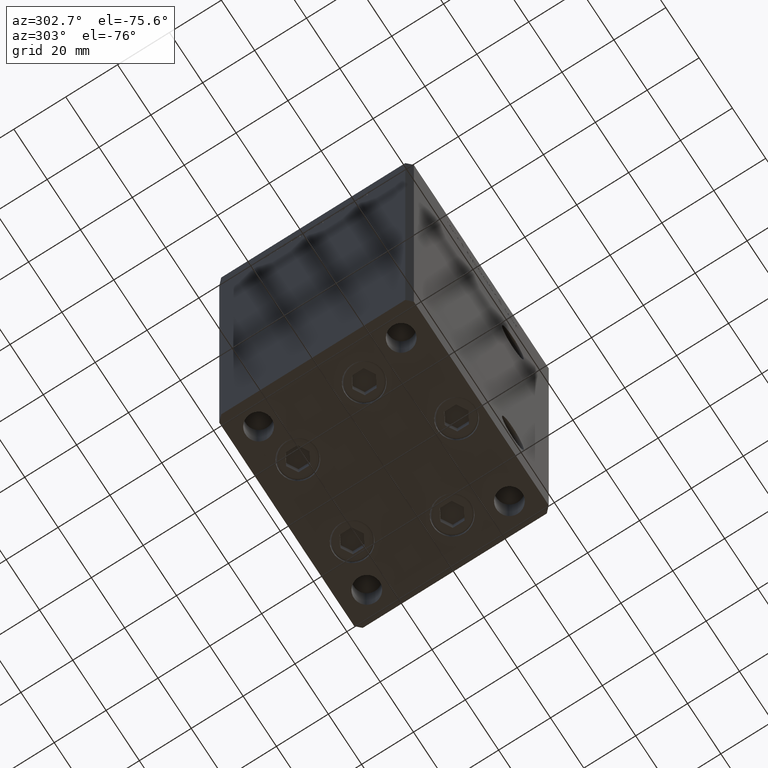
[diagram: clean part render]
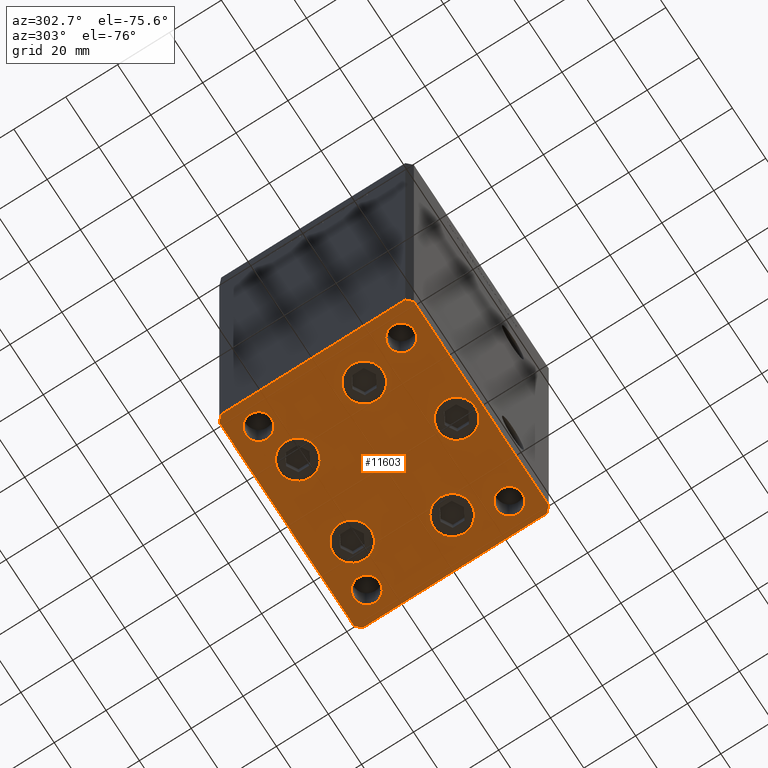
[diagram: same view with one face highlighted and labeled with its STEP entity id]
A machine part, auxiliary view. The second image highlights one B-rep face of the part: STEP entity #11603.
In plain terms, the highlighted planar face has unit normal (0, 0, -1).
Its self-contained STEP definition (entity closure, byte-faithful):
#543 = FACE_BOUND ( 'NONE', #9549, .T. ) ;
#760 = EDGE_CURVE ( 'NONE', #25622, #38683, #28828, .T. ) ;
#795 = DIRECTION ( 'NONE',  ( 1.000000000000000000, 0.000000000000000000, 0.000000000000000000 ) ) ;
#801 = CARTESIAN_POINT ( 'NONE',  ( 42.50000000000000711, -35.50000000000000000, 0.000000000000000000 ) ) ;
#1008 = EDGE_CURVE ( 'NONE', #23817, #39590, #50958, .T. ) ;
#1014 = DIRECTION ( 'NONE',  ( 0.000000000000000000, -0.000000000000000000, -1.000000000000000000 ) ) ;
#1179 = CIRCLE ( 'NONE', #9653, 5.000000000000000888 ) ;
#1211 = CIRCLE ( 'NONE', #35067, 4.999999999999997335 ) ;
#1285 = AXIS2_PLACEMENT_3D ( 'NONE', #44567, #28640, #29158 ) ;
#1493 = EDGE_CURVE ( 'NONE', #38683, #25622, #32203, .T. ) ;
#1774 = CARTESIAN_POINT ( 'NONE',  ( -7.249999999999997335, -28.00000000000000000, 0.000000000000000000 ) ) ;
#1990 = CARTESIAN_POINT ( 'NONE',  ( -32.50000000000000000, -27.49999999999999645, 0.000000000000000000 ) ) ;
#2287 = CARTESIAN_POINT ( 'NONE',  ( -19.14865316429777309, -9.333333333333335702, 0.000000000000000000 ) ) ;
#2519 = CARTESIAN_POINT ( 'NONE',  ( -40.50000000000000711, 37.49999999999997868, 0.000000000000000000 ) ) ;
#2762 = CIRCLE ( 'NONE', #25594, 4.999999999999997335 ) ;
#3625 = LINE ( 'NONE', #8396, #18151 ) ;
#4021 = CARTESIAN_POINT ( 'NONE',  ( 7.250000000000003553, -28.00000000000000000, 0.000000000000000000 ) ) ;
#4061 = DIRECTION ( 'NONE',  ( 0.000000000000000000, -0.000000000000000000, -1.000000000000000000 ) ) ;
#4144 = DIRECTION ( 'NONE',  ( 1.000000000000000000, 0.000000000000000000, 0.000000000000000000 ) ) ;
#4283 = VECTOR ( 'NONE', #14914, 1000.000000000000000 ) ;
#4428 = AXIS2_PLACEMENT_3D ( 'NONE', #1990, #33542, #4929 ) ;
#4547 = DIRECTION ( 'NONE',  ( 1.000000000000000000, 1.713307136767217096E-16, 0.000000000000000000 ) ) ;
#4687 = AXIS2_PLACEMENT_3D ( 'NONE', #41291, #1014, #37321 ) ;
#4718 = CARTESIAN_POINT ( 'NONE',  ( -16.32291334290543006, 22.74999999999999645, 0.000000000000000000 ) ) ;
#4752 = CARTESIAN_POINT ( 'NONE',  ( 27.50000000000000355, -27.49999999999999645, 0.000000000000000000 ) ) ;
#4903 = VERTEX_POINT ( 'NONE', #26346 ) ;
#4929 = DIRECTION ( 'NONE',  ( 1.000000000000000000, 0.000000000000000000, 0.000000000000000000 ) ) ;
#4975 = DIRECTION ( 'NONE',  ( 0.000000000000000000, -0.000000000000000000, -1.000000000000000000 ) ) ;
#5123 = DIRECTION ( 'NONE',  ( -1.172770800660376741E-15, 1.000000000000000000, 0.000000000000000000 ) ) ;
#5286 = ORIENTED_EDGE ( 'NONE', *, *, #13236, .T. ) ;
#5561 = FACE_BOUND ( 'NONE', #21201, .T. ) ;
#5598 = VERTEX_POINT ( 'NONE', #29549 ) ;
#6226 = ORIENTED_EDGE ( 'NONE', *, *, #1008, .T. ) ;
#6371 = ORIENTED_EDGE ( 'NONE', *, *, #12217, .F. ) ;
#6473 = EDGE_CURVE ( 'NONE', #37064, #14629, #34036, .T. ) ;
#7269 = VERTEX_POINT ( 'NONE', #29965 ) ;
#7341 = CIRCLE ( 'NONE', #33543, 4.999999999999997335 ) ;
#8285 = CIRCLE ( 'NONE', #25203, 7.249999999999999112 ) ;
#8291 = DIRECTION ( 'NONE',  ( 0.000000000000000000, -0.000000000000000000, -1.000000000000000000 ) ) ;
#8323 = CARTESIAN_POINT ( 'NONE',  ( 33.64865316429776954, -9.333333333333328596, 0.000000000000000000 ) ) ;
#8349 = VECTOR ( 'NONE', #4547, 1000.000000000000000 ) ;
#8396 = CARTESIAN_POINT ( 'NONE',  ( 40.50000000000000000, -37.50000000000000711, 0.000000000000000000 ) ) ;
#8833 = VERTEX_POINT ( 'NONE', #49628 ) ;
#9019 = EDGE_LOOP ( 'NONE', ( #24409, #15539 ) ) ;
#9188 = DIRECTION ( 'NONE',  ( -0.000000000000000000, 0.000000000000000000, 1.000000000000000000 ) ) ;
#9549 = EDGE_LOOP ( 'NONE', ( #13518, #49304 ) ) ;
#9553 = VERTEX_POINT ( 'NONE', #14755 ) ;
#9653 = AXIS2_PLACEMENT_3D ( 'NONE', #9903, #30811, #47001 ) ;
#9724 = CIRCLE ( 'NONE', #39348, 7.249999999999999112 ) ;
#9903 = CARTESIAN_POINT ( 'NONE',  ( -32.50000000000000000, 27.50000000000000355, 0.000000000000000000 ) ) ;
#9945 = ORIENTED_EDGE ( 'NONE', *, *, #37286, .T. ) ;
#10720 = CIRCLE ( 'NONE', #16634, 5.000000000000000888 ) ;
#10741 = DIRECTION ( 'NONE',  ( 1.000000000000000000, 0.000000000000000000, 0.000000000000000000 ) ) ;
#11205 = DIRECTION ( 'NONE',  ( 1.000000000000000000, 0.000000000000000000, 0.000000000000000000 ) ) ;
#11473 = CARTESIAN_POINT ( 'NONE',  ( 16.32291334290542295, 22.75000000000000000, 0.000000000000000000 ) ) ;
#11513 = DIRECTION ( 'NONE',  ( 1.000000000000000000, 0.000000000000000000, 0.000000000000000000 ) ) ;
#11603 = ADVANCED_FACE ( 'NONE', ( #21185, #21448, #44795, #25680, #5561, #13506, #16957, #45044, #37625, #543 ), #12479, .T. ) ;
#12039 = ORIENTED_EDGE ( 'NONE', *, *, #28593, .T. ) ;
#12199 = AXIS2_PLACEMENT_3D ( 'NONE', #19784, #31716, #4144 ) ;
#12217 = EDGE_CURVE ( 'NONE', #4903, #31118, #1179, .T. ) ;
#12358 = EDGE_CURVE ( 'NONE', #9553, #22040, #47769, .T. ) ;
#12479 = PLANE ( 'NONE',  #27423 ) ;
#12490 = CIRCLE ( 'NONE', #49708, 7.249999999999999112 ) ;
#12892 = DIRECTION ( 'NONE',  ( 1.000000000000000000, 0.000000000000000000, 0.000000000000000000 ) ) ;
#13177 = CARTESIAN_POINT ( 'NONE',  ( 32.50000000000000000, 27.49999999999999645, 0.000000000000000000 ) ) ;
#13236 = EDGE_CURVE ( 'NONE', #23217, #24172, #3625, .T. ) ;
#13457 = CARTESIAN_POINT ( 'NONE',  ( -42.50000000000000711, 35.49999999999997158, 0.000000000000000000 ) ) ;
#13506 = FACE_BOUND ( 'NONE', #29527, .T. ) ;
#13518 = ORIENTED_EDGE ( 'NONE', *, *, #6473, .T. ) ;
#13863 = DIRECTION ( 'NONE',  ( 1.000000000000000000, 0.000000000000000000, 0.000000000000000000 ) ) ;
#14446 = DIRECTION ( 'NONE',  ( 0.000000000000000000, -0.000000000000000000, -1.000000000000000000 ) ) ;
#14628 = ORIENTED_EDGE ( 'NONE', *, *, #44461, .T. ) ;
#14629 = VERTEX_POINT ( 'NONE', #30548 ) ;
#14647 = CARTESIAN_POINT ( 'NONE',  ( 40.49999999999991473, 37.50000000000000711, 0.000000000000000000 ) ) ;
#14755 = CARTESIAN_POINT ( 'NONE',  ( -23.57291334290543006, 22.74999999999999645, 0.000000000000000000 ) ) ;
#14914 = DIRECTION ( 'NONE',  ( -1.000000000000000000, -3.426614273534436165E-16, 0.000000000000000000 ) ) ;
#15539 = ORIENTED_EDGE ( 'NONE', *, *, #760, .T. ) ;
#16128 = AXIS2_PLACEMENT_3D ( 'NONE', #11473, #35314, #11205 ) ;
#16476 = LINE ( 'NONE', #37141, #8349 ) ;
#16507 = CARTESIAN_POINT ( 'NONE',  ( 40.49999999999991473, 37.50000000000000711, 0.000000000000000000 ) ) ;
#16634 = AXIS2_PLACEMENT_3D ( 'NONE', #46995, #38768, #13863 ) ;
#16744 = DIRECTION ( 'NONE',  ( 1.000000000000000000, 0.000000000000000000, 0.000000000000000000 ) ) ;
#16957 = FACE_BOUND ( 'NONE', #37760, .T. ) ;
#17441 = EDGE_LOOP ( 'NONE', ( #49953, #31203 ) ) ;
#18054 = DIRECTION ( 'NONE',  ( 0.7071067811865463515, -0.7071067811865487940, 0.000000000000000000 ) ) ;
#18079 = AXIS2_PLACEMENT_3D ( 'NONE', #34825, #30855, #10741 ) ;
#18121 = CARTESIAN_POINT ( 'NONE',  ( 26.39865316429776954, -9.333333333333330373, 0.000000000000000000 ) ) ;
#18151 = VECTOR ( 'NONE', #33011, 1000.000000000000114 ) ;
#18414 = CARTESIAN_POINT ( 'NONE',  ( 32.50000000000000000, -27.49999999999999645, 0.000000000000000000 ) ) ;
#19062 = CIRCLE ( 'NONE', #1285, 5.000000000000000888 ) ;
#19102 = VECTOR ( 'NONE', #18054, 1000.000000000000000 ) ;
#19784 = CARTESIAN_POINT ( 'NONE',  ( -16.32291334290543006, 22.74999999999999645, 0.000000000000000000 ) ) ;
#20361 = AXIS2_PLACEMENT_3D ( 'NONE', #32181, #44886, #27679 ) ;
#20397 = EDGE_CURVE ( 'NONE', #46569, #47283, #39390, .T. ) ;
#20609 = DIRECTION ( 'NONE',  ( 1.000000000000000000, 0.000000000000000000, 0.000000000000000000 ) ) ;
#20640 = VECTOR ( 'NONE', #5123, 1000.000000000000000 ) ;
#21121 = ORIENTED_EDGE ( 'NONE', *, *, #31218, .T. ) ;
#21185 = FACE_BOUND ( 'NONE', #17441, .T. ) ;
#21201 = EDGE_LOOP ( 'NONE', ( #34693, #21121 ) ) ;
#21448 = FACE_BOUND ( 'NONE', #9019, .T. ) ;
#21719 = CARTESIAN_POINT ( 'NONE',  ( 0.000000000000000000, 0.000000000000000000, 0.000000000000000000 ) ) ;
#21731 = EDGE_CURVE ( 'NONE', #35358, #8833, #38200, .T. ) ;
#22040 = VERTEX_POINT ( 'NONE', #25936 ) ;
#22369 = CARTESIAN_POINT ( 'NONE',  ( 37.50000000000000000, 27.49999999999999645, 0.000000000000000000 ) ) ;
#22567 = CARTESIAN_POINT ( 'NONE',  ( 37.50000000000000000, -27.49999999999999645, 0.000000000000000000 ) ) ;
#22710 = VERTEX_POINT ( 'NONE', #27848 ) ;
#22913 = CARTESIAN_POINT ( 'NONE',  ( 9.072913342905424727, 22.75000000000000000, 0.000000000000000000 ) ) ;
#23195 = VERTEX_POINT ( 'NONE', #1774 ) ;
#23217 = VERTEX_POINT ( 'NONE', #45512 ) ;
#23440 = ORIENTED_EDGE ( 'NONE', *, *, #26806, .T. ) ;
#23817 = VERTEX_POINT ( 'NONE', #16507 ) ;
#23881 = EDGE_CURVE ( 'NONE', #36454, #5598, #2762, .T. ) ;
#24172 = VERTEX_POINT ( 'NONE', #801 ) ;
#24409 = ORIENTED_EDGE ( 'NONE', *, *, #1493, .T. ) ;
#24462 = CARTESIAN_POINT ( 'NONE',  ( 32.50000000000000000, 27.49999999999999645, 0.000000000000000000 ) ) ;
#24497 = EDGE_CURVE ( 'NONE', #22040, #9553, #24768, .T. ) ;
#24768 = CIRCLE ( 'NONE', #39993, 7.249999999999999112 ) ;
#24808 = CARTESIAN_POINT ( 'NONE',  ( -26.39865316429776954, -9.333333333333337478, 0.000000000000000000 ) ) ;
#25203 = AXIS2_PLACEMENT_3D ( 'NONE', #18121, #26065, #29523 ) ;
#25309 = CARTESIAN_POINT ( 'NONE',  ( 42.49999999999992895, 35.50000000000000000, 0.000000000000000000 ) ) ;
#25594 = AXIS2_PLACEMENT_3D ( 'NONE', #24462, #31897, #40634 ) ;
#25622 = VERTEX_POINT ( 'NONE', #41224 ) ;
#25680 = FACE_BOUND ( 'NONE', #51343, .T. ) ;
#25889 = VERTEX_POINT ( 'NONE', #8323 ) ;
#25908 = EDGE_CURVE ( 'NONE', #7269, #25889, #29037, .T. ) ;
#25936 = CARTESIAN_POINT ( 'NONE',  ( -9.072913342905431833, 22.74999999999999645, 0.000000000000000000 ) ) ;
#26065 = DIRECTION ( 'NONE',  ( 0.000000000000000000, -0.000000000000000000, -1.000000000000000000 ) ) ;
#26346 = CARTESIAN_POINT ( 'NONE',  ( -27.50000000000000000, 27.50000000000000355, 0.000000000000000000 ) ) ;
#26806 = EDGE_CURVE ( 'NONE', #23195, #42045, #40921, .T. ) ;
#27423 = AXIS2_PLACEMENT_3D ( 'NONE', #21719, #41077, #795 ) ;
#27569 = VECTOR ( 'NONE', #29613, 1000.000000000000000 ) ;
#27673 = EDGE_CURVE ( 'NONE', #24172, #47692, #32693, .T. ) ;
#27679 = DIRECTION ( 'NONE',  ( 1.000000000000000000, 0.000000000000000000, 0.000000000000000000 ) ) ;
#27777 = ORIENTED_EDGE ( 'NONE', *, *, #38589, .T. ) ;
#27848 = CARTESIAN_POINT ( 'NONE',  ( -33.64865316429776954, -9.333333333333337478, 0.000000000000000000 ) ) ;
#28454 = ORIENTED_EDGE ( 'NONE', *, *, #39660, .T. ) ;
#28593 = EDGE_CURVE ( 'NONE', #39590, #36754, #45141, .T. ) ;
#28640 = DIRECTION ( 'NONE',  ( 0.000000000000000000, -0.000000000000000000, -1.000000000000000000 ) ) ;
#28774 = ORIENTED_EDGE ( 'NONE', *, *, #50380, .T. ) ;
#28828 = CIRCLE ( 'NONE', #20361, 7.249999999999999112 ) ;
#28954 = CARTESIAN_POINT ( 'NONE',  ( -42.50000000000000711, 35.49999999999997158, 0.000000000000000000 ) ) ;
#29037 = CIRCLE ( 'NONE', #50201, 7.249999999999999112 ) ;
#29087 = ORIENTED_EDGE ( 'NONE', *, *, #27673, .T. ) ;
#29158 = DIRECTION ( 'NONE',  ( 1.000000000000000000, 0.000000000000000000, 0.000000000000000000 ) ) ;
#29454 = CARTESIAN_POINT ( 'NONE',  ( -42.50000000000000000, -35.50000000000000711, 0.000000000000000000 ) ) ;
#29523 = DIRECTION ( 'NONE',  ( 1.000000000000000000, 0.000000000000000000, 0.000000000000000000 ) ) ;
#29527 = EDGE_LOOP ( 'NONE', ( #40235, #33271 ) ) ;
#29549 = CARTESIAN_POINT ( 'NONE',  ( 27.50000000000000355, 27.49999999999999645, 0.000000000000000000 ) ) ;
#29550 = DIRECTION ( 'NONE',  ( -0.7071067811865474617, 0.7071067811865474617, 0.000000000000000000 ) ) ;
#29582 = DIRECTION ( 'NONE',  ( 1.000000000000000000, 0.000000000000000000, 0.000000000000000000 ) ) ;
#29587 = EDGE_LOOP ( 'NONE', ( #32487, #14628 ) ) ;
#29613 = DIRECTION ( 'NONE',  ( 9.773090005503140331E-17, -1.000000000000000000, 0.000000000000000000 ) ) ;
#29817 = EDGE_CURVE ( 'NONE', #5598, #36454, #1211, .T. ) ;
#29965 = CARTESIAN_POINT ( 'NONE',  ( 19.14865316429777309, -9.333333333333330373, 0.000000000000000000 ) ) ;
#30548 = CARTESIAN_POINT ( 'NONE',  ( -37.50000000000000711, -27.49999999999999645, 0.000000000000000000 ) ) ;
#30811 = DIRECTION ( 'NONE',  ( -0.000000000000000000, 0.000000000000000000, 1.000000000000000000 ) ) ;
#30855 = DIRECTION ( 'NONE',  ( 0.000000000000000000, -0.000000000000000000, -1.000000000000000000 ) ) ;
#31118 = VERTEX_POINT ( 'NONE', #41991 ) ;
#31203 = ORIENTED_EDGE ( 'NONE', *, *, #24497, .T. ) ;
#31218 = EDGE_CURVE ( 'NONE', #48645, #22710, #9724, .T. ) ;
#31716 = DIRECTION ( 'NONE',  ( 0.000000000000000000, -0.000000000000000000, -1.000000000000000000 ) ) ;
#31897 = DIRECTION ( 'NONE',  ( -0.000000000000000000, 0.000000000000000000, 1.000000000000000000 ) ) ;
#32138 = CARTESIAN_POINT ( 'NONE',  ( 3.429011037612589276E-15, -28.00000000000000000, 0.000000000000000000 ) ) ;
#32181 = CARTESIAN_POINT ( 'NONE',  ( 16.32291334290542295, 22.75000000000000000, 0.000000000000000000 ) ) ;
#32203 = CIRCLE ( 'NONE', #16128, 7.249999999999999112 ) ;
#32487 = ORIENTED_EDGE ( 'NONE', *, *, #25908, .T. ) ;
#32693 = LINE ( 'NONE', #49650, #20640 ) ;
#33011 = DIRECTION ( 'NONE',  ( 0.7071067811865474617, 0.7071067811865474617, 0.000000000000000000 ) ) ;
#33271 = ORIENTED_EDGE ( 'NONE', *, *, #29817, .F. ) ;
#33482 = DIRECTION ( 'NONE',  ( -0.7071067811865463515, -0.7071067811865487940, 0.000000000000000000 ) ) ;
#33542 = DIRECTION ( 'NONE',  ( 0.000000000000000000, -0.000000000000000000, -1.000000000000000000 ) ) ;
#33543 = AXIS2_PLACEMENT_3D ( 'NONE', #18414, #14446, #46789 ) ;
#34007 = CARTESIAN_POINT ( 'NONE',  ( 42.49999999999992895, 35.50000000000000000, 0.000000000000000000 ) ) ;
#34036 = CIRCLE ( 'NONE', #4428, 5.000000000000000888 ) ;
#34693 = ORIENTED_EDGE ( 'NONE', *, *, #42761, .T. ) ;
#34825 = CARTESIAN_POINT ( 'NONE',  ( 3.429011037612589276E-15, -28.00000000000000000, 0.000000000000000000 ) ) ;
#35067 = AXIS2_PLACEMENT_3D ( 'NONE', #13177, #9188, #29582 ) ;
#35103 = EDGE_LOOP ( 'NONE', ( #36726, #28774, #5286, #29087, #27777, #6226, #12039, #9945 ) ) ;
#35314 = DIRECTION ( 'NONE',  ( 0.000000000000000000, -0.000000000000000000, -1.000000000000000000 ) ) ;
#35358 = VERTEX_POINT ( 'NONE', #51853 ) ;
#35813 = DIRECTION ( 'NONE',  ( 0.000000000000000000, -0.000000000000000000, -1.000000000000000000 ) ) ;
#35978 = EDGE_CURVE ( 'NONE', #14629, #37064, #19062, .T. ) ;
#36454 = VERTEX_POINT ( 'NONE', #22369 ) ;
#36726 = ORIENTED_EDGE ( 'NONE', *, *, #21731, .T. ) ;
#36754 = VERTEX_POINT ( 'NONE', #28954 ) ;
#37064 = VERTEX_POINT ( 'NONE', #50346 ) ;
#37141 = CARTESIAN_POINT ( 'NONE',  ( -40.49999999999999289, -37.50000000000002132, 0.000000000000000000 ) ) ;
#37286 = EDGE_CURVE ( 'NONE', #36754, #35358, #37572, .T. ) ;
#37321 = DIRECTION ( 'NONE',  ( 1.000000000000000000, 0.000000000000000000, 0.000000000000000000 ) ) ;
#37572 = LINE ( 'NONE', #13457, #27569 ) ;
#37625 = FACE_OUTER_BOUND ( 'NONE', #35103, .T. ) ;
#37760 = EDGE_LOOP ( 'NONE', ( #47948, #28454 ) ) ;
#37932 = AXIS2_PLACEMENT_3D ( 'NONE', #32138, #8291, #16744 ) ;
#38052 = EDGE_LOOP ( 'NONE', ( #6371, #50944 ) ) ;
#38080 = ORIENTED_EDGE ( 'NONE', *, *, #45453, .T. ) ;
#38200 = LINE ( 'NONE', #29454, #19102 ) ;
#38589 = EDGE_CURVE ( 'NONE', #47692, #23817, #41226, .T. ) ;
#38683 = VERTEX_POINT ( 'NONE', #22913 ) ;
#38768 = DIRECTION ( 'NONE',  ( -0.000000000000000000, 0.000000000000000000, 1.000000000000000000 ) ) ;
#39348 = AXIS2_PLACEMENT_3D ( 'NONE', #47285, #4061, #11513 ) ;
#39390 = CIRCLE ( 'NONE', #4687, 4.999999999999997335 ) ;
#39590 = VERTEX_POINT ( 'NONE', #2519 ) ;
#39660 = EDGE_CURVE ( 'NONE', #47283, #46569, #7341, .T. ) ;
#39955 = EDGE_CURVE ( 'NONE', #31118, #4903, #10720, .T. ) ;
#39993 = AXIS2_PLACEMENT_3D ( 'NONE', #4718, #4975, #20609 ) ;
#40235 = ORIENTED_EDGE ( 'NONE', *, *, #23881, .F. ) ;
#40634 = DIRECTION ( 'NONE',  ( 1.000000000000000000, 0.000000000000000000, 0.000000000000000000 ) ) ;
#40921 = CIRCLE ( 'NONE', #18079, 7.250000000000000000 ) ;
#40986 = DIRECTION ( 'NONE',  ( 0.000000000000000000, -0.000000000000000000, -1.000000000000000000 ) ) ;
#41077 = DIRECTION ( 'NONE',  ( -0.000000000000000000, 0.000000000000000000, 1.000000000000000000 ) ) ;
#41224 = CARTESIAN_POINT ( 'NONE',  ( 23.57291334290542295, 22.75000000000000000, 0.000000000000000000 ) ) ;
#41226 = LINE ( 'NONE', #25309, #41983 ) ;
#41291 = CARTESIAN_POINT ( 'NONE',  ( 32.50000000000000000, -27.49999999999999645, 0.000000000000000000 ) ) ;
#41331 = CIRCLE ( 'NONE', #37932, 7.250000000000000000 ) ;
#41430 = CARTESIAN_POINT ( 'NONE',  ( -40.50000000000000711, 37.49999999999997868, 0.000000000000000000 ) ) ;
#41792 = VECTOR ( 'NONE', #33482, 1000.000000000000000 ) ;
#41983 = VECTOR ( 'NONE', #29550, 1000.000000000000114 ) ;
#41991 = CARTESIAN_POINT ( 'NONE',  ( -37.50000000000000711, 27.50000000000000355, 0.000000000000000000 ) ) ;
#42045 = VERTEX_POINT ( 'NONE', #4021 ) ;
#42761 = EDGE_CURVE ( 'NONE', #22710, #48645, #12490, .T. ) ;
#42936 = CARTESIAN_POINT ( 'NONE',  ( 26.39865316429776954, -9.333333333333330373, 0.000000000000000000 ) ) ;
#44461 = EDGE_CURVE ( 'NONE', #25889, #7269, #8285, .T. ) ;
#44567 = CARTESIAN_POINT ( 'NONE',  ( -32.50000000000000000, -27.49999999999999645, 0.000000000000000000 ) ) ;
#44795 = FACE_BOUND ( 'NONE', #29587, .T. ) ;
#44886 = DIRECTION ( 'NONE',  ( 0.000000000000000000, -0.000000000000000000, -1.000000000000000000 ) ) ;
#45044 = FACE_BOUND ( 'NONE', #38052, .T. ) ;
#45141 = LINE ( 'NONE', #41430, #41792 ) ;
#45453 = EDGE_CURVE ( 'NONE', #42045, #23195, #41331, .T. ) ;
#45512 = CARTESIAN_POINT ( 'NONE',  ( 40.50000000000000000, -37.50000000000000711, 0.000000000000000000 ) ) ;
#46569 = VERTEX_POINT ( 'NONE', #22567 ) ;
#46789 = DIRECTION ( 'NONE',  ( 1.000000000000000000, 0.000000000000000000, 0.000000000000000000 ) ) ;
#46995 = CARTESIAN_POINT ( 'NONE',  ( -32.50000000000000000, 27.50000000000000355, 0.000000000000000000 ) ) ;
#47001 = DIRECTION ( 'NONE',  ( 1.000000000000000000, 0.000000000000000000, 0.000000000000000000 ) ) ;
#47283 = VERTEX_POINT ( 'NONE', #4752 ) ;
#47285 = CARTESIAN_POINT ( 'NONE',  ( -26.39865316429776954, -9.333333333333337478, 0.000000000000000000 ) ) ;
#47692 = VERTEX_POINT ( 'NONE', #34007 ) ;
#47769 = CIRCLE ( 'NONE', #12199, 7.249999999999999112 ) ;
#47948 = ORIENTED_EDGE ( 'NONE', *, *, #20397, .T. ) ;
#48645 = VERTEX_POINT ( 'NONE', #2287 ) ;
#48791 = DIRECTION ( 'NONE',  ( 1.000000000000000000, 0.000000000000000000, 0.000000000000000000 ) ) ;
#49304 = ORIENTED_EDGE ( 'NONE', *, *, #35978, .T. ) ;
#49628 = CARTESIAN_POINT ( 'NONE',  ( -40.49999999999999289, -37.50000000000002132, 0.000000000000000000 ) ) ;
#49650 = CARTESIAN_POINT ( 'NONE',  ( 42.50000000000000711, -35.50000000000000000, 0.000000000000000000 ) ) ;
#49708 = AXIS2_PLACEMENT_3D ( 'NONE', #24808, #40986, #12892 ) ;
#49953 = ORIENTED_EDGE ( 'NONE', *, *, #12358, .T. ) ;
#50201 = AXIS2_PLACEMENT_3D ( 'NONE', #42936, #35813, #48791 ) ;
#50346 = CARTESIAN_POINT ( 'NONE',  ( -27.50000000000000000, -27.49999999999999645, 0.000000000000000000 ) ) ;
#50380 = EDGE_CURVE ( 'NONE', #8833, #23217, #16476, .T. ) ;
#50944 = ORIENTED_EDGE ( 'NONE', *, *, #39955, .F. ) ;
#50958 = LINE ( 'NONE', #14647, #4283 ) ;
#51343 = EDGE_LOOP ( 'NONE', ( #23440, #38080 ) ) ;
#51853 = CARTESIAN_POINT ( 'NONE',  ( -42.50000000000000000, -35.50000000000000711, 0.000000000000000000 ) ) ;